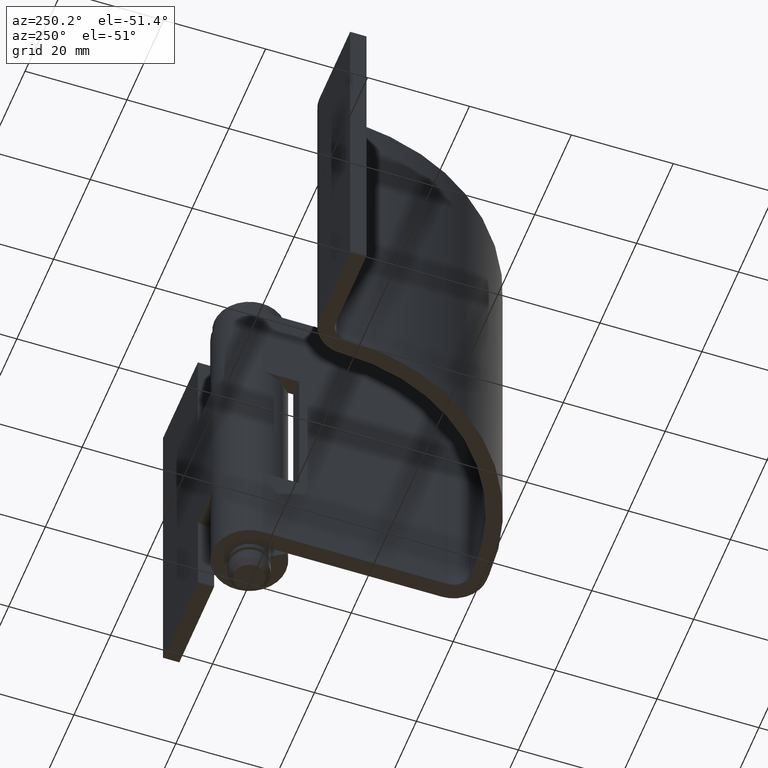
[diagram: clean part render]
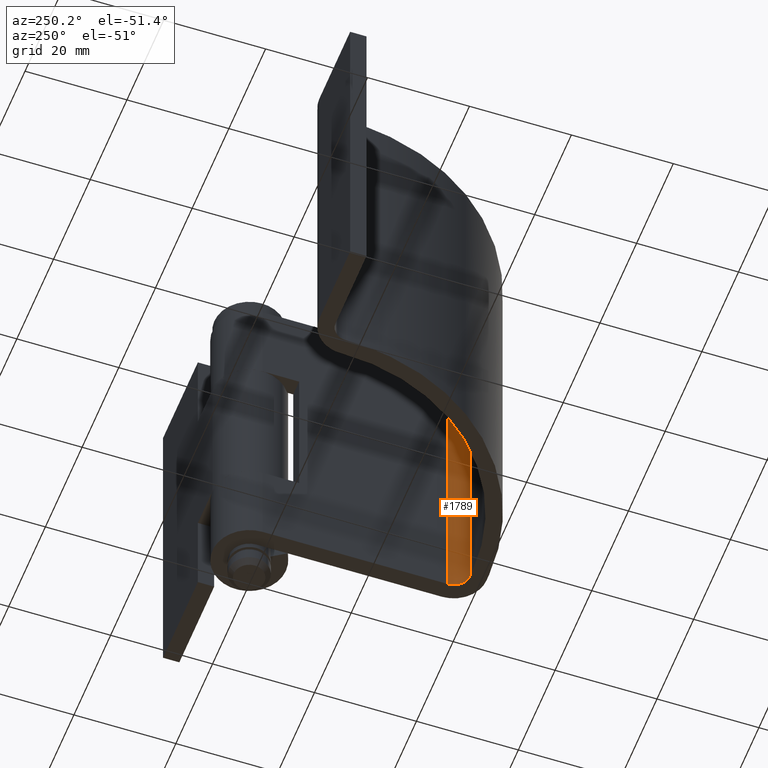
[diagram: same view with one face highlighted and labeled with its STEP entity id]
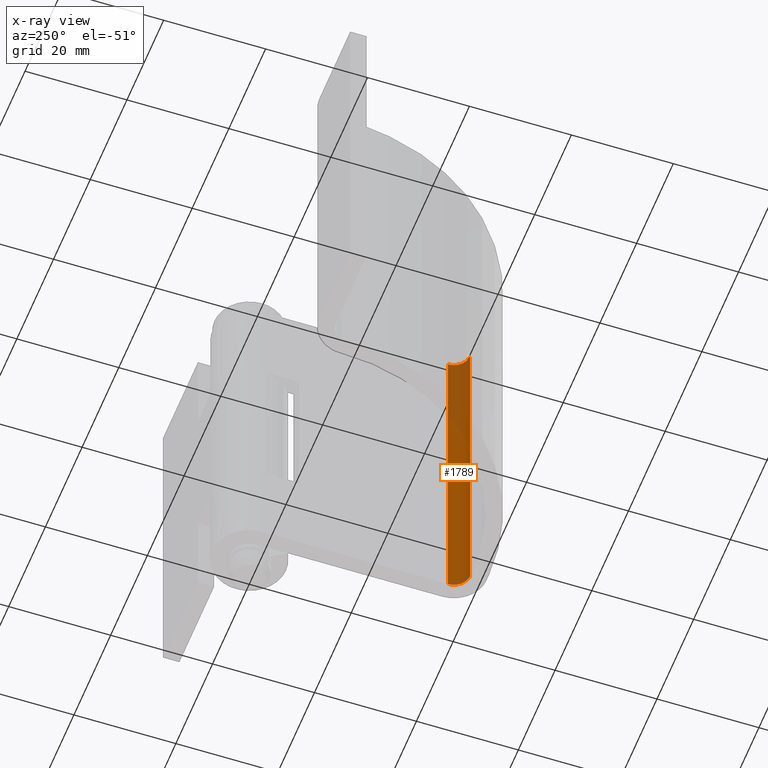
[diagram: x-ray of the same camera — body ghosted, the highlighted face saturated]
A machine part, auxiliary view. The second image highlights one B-rep face of the part: STEP entity #1789.
The next image is the same camera in x-ray: the body ghosted, the highlighted face saturated — about 32% of this face is hidden behind the body in this view.
In plain terms, the highlighted face is a freeform B-spline surface patch.
Its self-contained STEP definition (entity closure, byte-faithful):
#1211=CARTESIAN_POINT('',(-10.400000000000000,-39.600000000000001,5.0));
#1212=VERTEX_POINT('',#1211);
#1218=CARTESIAN_POINT('',(-7.200000000000000,-36.399999999999999,5.0));
#1219=VERTEX_POINT('',#1218);
#1220=CARTESIAN_POINT('',(-7.200000000000000,-36.399999999999999,5.0));
#1221=CARTESIAN_POINT('',(-7.200000000000000,-39.599999999999994,5.000000000000001));
#1222=CARTESIAN_POINT('',(-10.400000000000000,-39.600000000000001,5.0));
#1230=(BOUNDED_CURVE()B_SPLINE_CURVE(2,(#1220,#1221,#1222),.UNSPECIFIED.,.F.,.U.)CURVE()GEOMETRIC_REPRESENTATION_ITEM()QUASI_UNIFORM_CURVE()RATIONAL_B_SPLINE_CURVE((1.0,0.707106781186548,1.0))REPRESENTATION_ITEM(''));
#1231=EDGE_CURVE('',#1219,#1212,#1230,.T.);
#1493=CARTESIAN_POINT('',(-7.200000000000000,-36.399999999999999,70.0));
#1494=VERTEX_POINT('',#1493);
#1500=CARTESIAN_POINT('',(-10.400000000000000,-39.600000000000001,70.0));
#1501=VERTEX_POINT('',#1500);
#1502=CARTESIAN_POINT('',(-7.200000000000000,-36.399999999999999,70.0));
#1503=CARTESIAN_POINT('',(-7.200000000000000,-39.599999999999994,70.0));
#1504=CARTESIAN_POINT('',(-10.400000000000000,-39.600000000000001,70.0));
#1512=(BOUNDED_CURVE()B_SPLINE_CURVE(2,(#1502,#1503,#1504),.UNSPECIFIED.,.F.,.U.)CURVE()GEOMETRIC_REPRESENTATION_ITEM()QUASI_UNIFORM_CURVE()RATIONAL_B_SPLINE_CURVE((1.0,0.707106781186548,1.0))REPRESENTATION_ITEM(''));
#1513=EDGE_CURVE('',#1494,#1501,#1512,.T.);
#1761=CARTESIAN_POINT('',(-10.539582039569080,-39.596954309061942,71.625000000000000));
#1762=CARTESIAN_POINT('',(-10.539582039569080,-39.596954309061942,3.334375000000009));
#1763=CARTESIAN_POINT('',(-6.956608871611842,-39.753390295990840,71.625000000000000));
#1764=CARTESIAN_POINT('',(-6.956608871611842,-39.753390295990840,3.334375000000009));
#1765=CARTESIAN_POINT('',(-7.207862570865433,-36.175815626061620,71.625000000000000));
#1766=CARTESIAN_POINT('',(-7.207862570865433,-36.175815626061620,3.334375000000009));
#1774=(BOUNDED_SURFACE()B_SPLINE_SURFACE(1,2,((#1761,#1763,#1765),(#1762,#1764,#1766)),.UNSPECIFIED.,.F.,.F.,.U.)B_SPLINE_SURFACE_WITH_KNOTS((2,2),(3,3),(0.0,68.290624999999991),(0.0,5.733574296606609),.UNSPECIFIED.)GEOMETRIC_REPRESENTATION_ITEM()RATIONAL_B_SPLINE_SURFACE(((1.0,0.664514005422869,0.996233349883652),(1.0,0.664514005422869,0.996233349883652)))REPRESENTATION_ITEM('')SURFACE());
#1775=ORIENTED_EDGE('',*,*,#1231,.T.);
#1776=CARTESIAN_POINT('',(-10.400000000000000,-39.600000000000001,70.0));
#1777=CARTESIAN_POINT('',(-10.400000000000000,-39.600000000000001,5.0));
#1778=QUASI_UNIFORM_CURVE('',1,(#1776,#1777),.UNSPECIFIED.,.F.,.U.);
#1779=EDGE_CURVE('',#1501,#1212,#1778,.T.);
#1780=ORIENTED_EDGE('',*,*,#1779,.F.);
#1781=ORIENTED_EDGE('',*,*,#1513,.F.);
#1782=CARTESIAN_POINT('',(-7.200000000000000,-36.399999999999999,70.0));
#1783=CARTESIAN_POINT('',(-7.200000000000000,-36.399999999999999,5.0));
#1784=QUASI_UNIFORM_CURVE('',1,(#1782,#1783),.UNSPECIFIED.,.F.,.U.);
#1785=EDGE_CURVE('',#1494,#1219,#1784,.T.);
#1786=ORIENTED_EDGE('',*,*,#1785,.T.);
#1787=EDGE_LOOP('',(#1775,#1780,#1781,#1786));
#1788=FACE_OUTER_BOUND('',#1787,.T.);
#1789=ADVANCED_FACE('',(#1788),#1774,.F.);